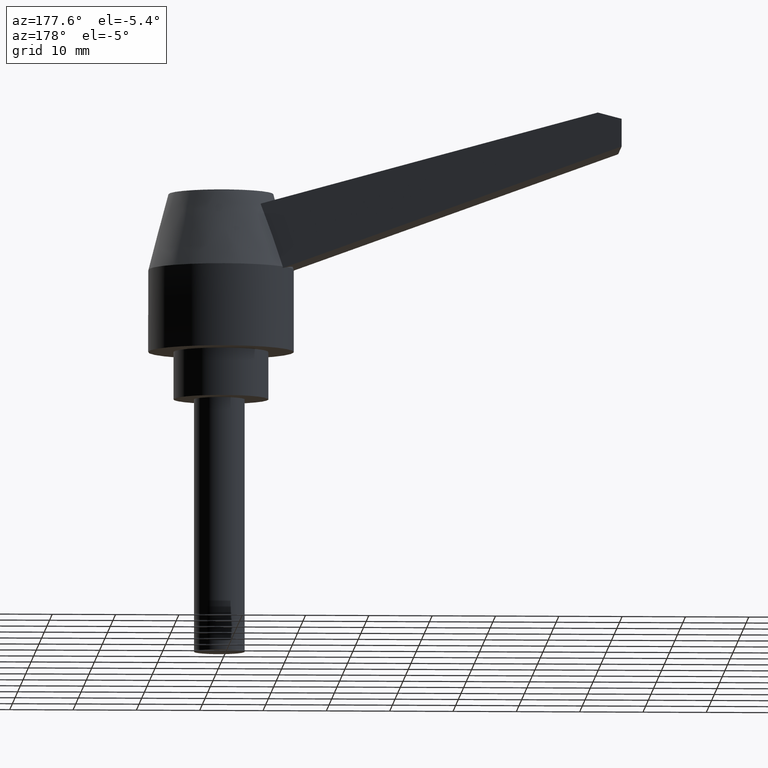
[diagram: clean part render]
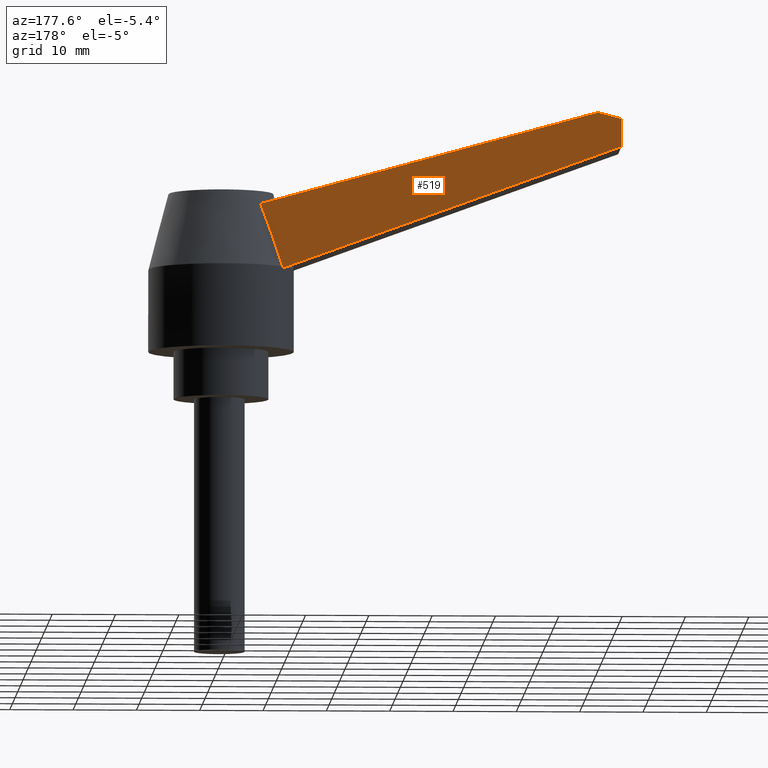
[diagram: same view with one face highlighted and labeled with its STEP entity id]
A machine part, auxiliary view. The second image highlights one B-rep face of the part: STEP entity #519.
In plain terms, the highlighted planar face has unit normal (0, 1, 0).
Its self-contained STEP definition (entity closure, byte-faithful):
#216=CARTESIAN_POINT('',(-9.486832980505104,6.499999999999932,20.237469092189500));
#217=VERTEX_POINT('',#216);
#225=CARTESIAN_POINT('',(-9.486832980505144,6.499999999999973,20.500000000000014));
#226=VERTEX_POINT('',#225);
#227=CARTESIAN_POINT('',(-9.486832980505117,6.499999999999986,20.237469092189500));
#228=DIRECTION('',(0.0,0.0,1.0));
#229=VECTOR('',#228,0.262530907810515);
#230=LINE('',#227,#229);
#231=EDGE_CURVE('',#217,#226,#230,.T.);
#326=CARTESIAN_POINT('',(-5.989480691774158,6.499999999994949,30.431840536688327));
#327=VERTEX_POINT('',#326);
#328=CARTESIAN_POINT('',(-9.486832980505144,6.499999999999973,20.500000000000014));
#329=CARTESIAN_POINT('',(-8.924129740569738,6.499999999999973,22.232408786132837));
#330=CARTESIAN_POINT('',(-8.107705780670512,6.499999999999772,24.680204736521617));
#331=CARTESIAN_POINT('',(-6.928262411578147,6.500000000000093,27.986617058895462));
#332=CARTESIAN_POINT('',(-6.331554087226160,6.499999999999973,29.566744910999091));
#333=CARTESIAN_POINT('',(-5.989480691774682,6.499999999999973,30.431840536686323));
#334=B_SPLINE_CURVE_WITH_KNOTS('',3,(#328,#329,#330,#331,#332,#333),.UNSPECIFIED.,.F.,.U.,(4,1,1,4),(0.0,5.464623178458854,7.740353972626619,10.531241818889725),.UNSPECIFIED.);
#335=EDGE_CURVE('',#226,#327,#334,.T.);
#360=CARTESIAN_POINT('',(-62.999999999999986,6.499999999999932,39.714669028601534));
#361=VERTEX_POINT('',#360);
#368=CARTESIAN_POINT('',(-9.486832980505103,6.499999999999975,20.237469092189507));
#369=DIRECTION('',(-0.939692620785908,2.339465E-016,0.342020143325670));
#370=VECTOR('',#369,56.947522876937526);
#371=LINE('',#368,#370);
#372=EDGE_CURVE('',#217,#361,#371,.T.);
#420=CARTESIAN_POINT('',(-62.999999999999986,6.499999999999932,44.100006688642210));
#421=VERTEX_POINT('',#420);
#428=CARTESIAN_POINT('',(-62.999999999999986,6.499999999999932,39.714669028601534));
#429=DIRECTION('',(0.0,0.0,1.0));
#430=VECTOR('',#429,4.385337660040676);
#431=LINE('',#428,#430);
#432=EDGE_CURVE('',#361,#421,#431,.T.);
#451=CARTESIAN_POINT('',(-59.246615726999266,6.499999999999967,45.079233898756982));
#452=VERTEX_POINT('',#451);
#459=CARTESIAN_POINT('',(-62.999999999999986,6.499999999999932,44.100006688642210));
#460=DIRECTION('',(0.967612015328632,2.289699E-016,0.252442048382721));
#461=VECTOR('',#460,3.879017843454473);
#462=LINE('',#459,#461);
#463=EDGE_CURVE('',#421,#452,#462,.T.);
#482=CARTESIAN_POINT('',(-59.246615726999266,6.499999999999967,45.079233898756982));
#483=DIRECTION('',(0.964197610473013,-1.286407E-016,-0.265184780781500));
#484=VECTOR('',#483,55.234668139335696);
#485=LINE('',#482,#484);
#486=EDGE_CURVE('',#452,#327,#485,.T.);
#506=CARTESIAN_POINT('',(6.301868280224920,6.499999999999933,13.953207026651100));
#507=DIRECTION('',(0.0,1.0,0.0));
#508=DIRECTION('',(-1.0,0.0,0.0));
#509=AXIS2_PLACEMENT_3D('',#506,#507,#508);
#510=PLANE('',#509);
#511=ORIENTED_EDGE('',*,*,#432,.T.);
#512=ORIENTED_EDGE('',*,*,#463,.T.);
#513=ORIENTED_EDGE('',*,*,#486,.T.);
#514=ORIENTED_EDGE('',*,*,#335,.F.);
#515=ORIENTED_EDGE('',*,*,#231,.F.);
#516=ORIENTED_EDGE('',*,*,#372,.T.);
#517=EDGE_LOOP('',(#511,#512,#513,#514,#515,#516));
#518=FACE_OUTER_BOUND('',#517,.T.);
#519=ADVANCED_FACE('',(#518),#510,.T.);